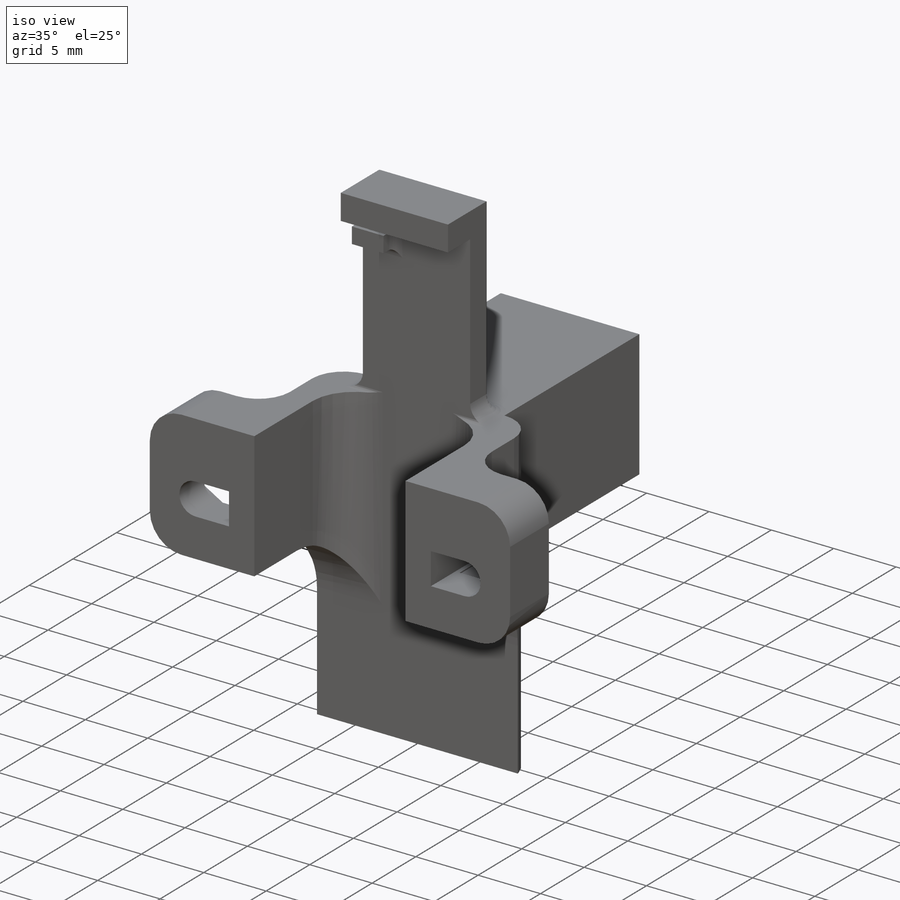
[diagram: iso view]
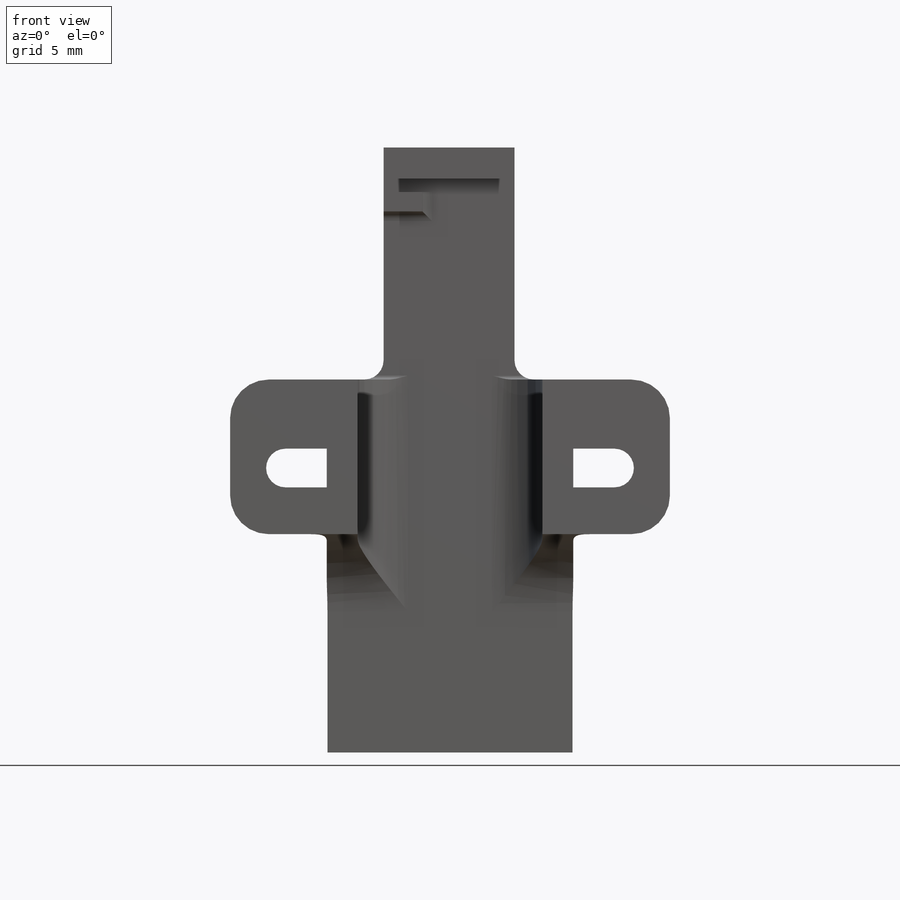
[diagram: front view]
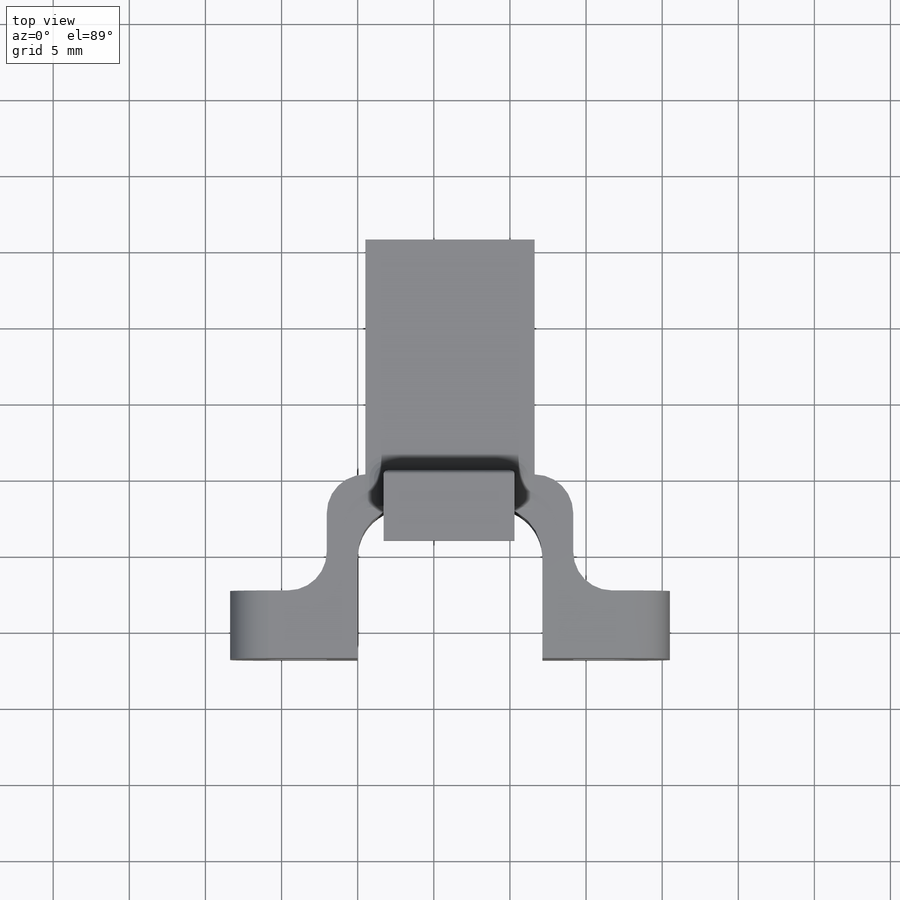
[diagram: top view]
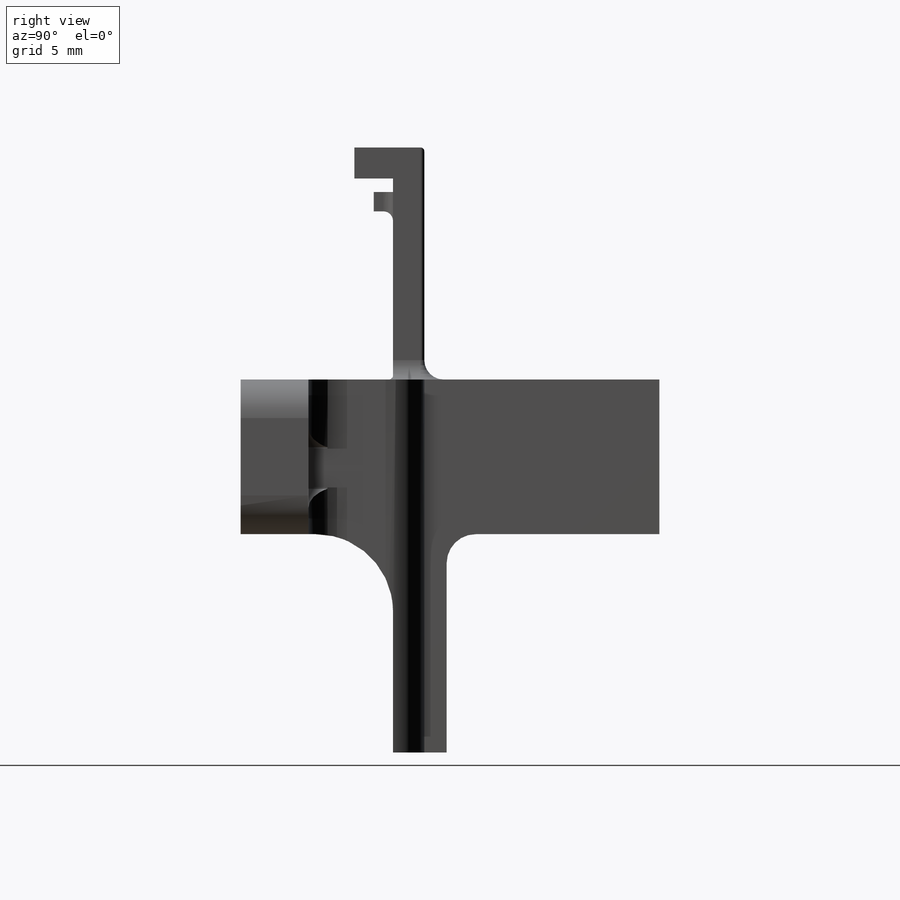
[diagram: right view]
SOLIDWORKS PART (.sldprt)
format: sldprt  version: not decoded by parser v0  size: 519,168 bytes
history: native  units: mm
features: sketch x11, extrude x8, fillet x8, cut_extrude x3, plane x2, material x1, mirror x1 (+13 scaffold rows collapsed)
feature tree (47):
  scaffold x13  (default folders/planes/origin — collapsed)
  material  "Material <not specified>"
  sketch  "Sketch1"  dims[c1.D3=~3.172423mm c1.D5=~4.589441mm c1.D6=~4.589441mm c1.D1=12.1285mm c1.D2=10.16mm c2.D3=8.9916mm c2.D4=5.5118mm c3.D3=5.5372mm c3.D7=1.7018mm c3.D8=1.8288mm c3.D9=15.24mm c3.D10=15.24mm c4.D3=8.6614mm]
  extrude  "Boss-Extrude1"  Depth=2.0574mm
  sketch  "Sketch4"  dims[D1=24.6634mm D2=12.065mm]
  extrude  "Boss-Extrude2"  Depth=2.032mm
  sketch  "Sketch5"  dims[D1=12.065mm]
  extrude  "Boss-Extrude3"  Depth=2.032mm
  sketch  "Sketch8"  dims[D1=2.032mm]
  extrude  "Boss-Extrude4"  Depth=2.54mm
  fillet  "Fillet22"  Radius=3.302mm
  sketch  "Sketch26"
  cut_extrude  "Cut-Extrude12"  [1 undecoded]
  sketch  "Sketch28"  dims[D1=0.889mm D2=2.54mm D3=1.27mm]
  extrude  "Boss-Extrude6"  Depth=1.27mm
  sketch  "Sketch30"  dims[D2=2.54mm D3=2.54mm D1=6.35mm]
  extrude  "Boss-Extrude7"  Depth=4.445mm
  fillet  "Fillet23"  Radius=0.635mm
  sketch  "Sketch34"  dims[D1=5.461mm]
  cut_extrude  "Cut-Extrude15"  Depth=1.651mm
  fillet  "Fillet25"  Radius=0.254mm
  plane  "Plane2"
  mirror  "Mirror7"
  fillet  "Fillet26"  Radius=2.54mm
  sketch  "Sketch35"
  plane  "Plane3"  Offset=27.499996mm
  extrude  "Boss-Extrude9"  [1 undecoded]
  sketch  "Sketch38"  dims[D1=13.97mm]
  extrude  "Boss-Extrude10"  Depth=14.34mm
  fillet  "Fillet27"  Radius=1.905mm
  fillet  "Fillet29"  Radius=5.08mm
  fillet  "Fillet32"  Radius=0.254mm
  fillet  "Fillet33"  Radius=1.27mm
  sketch  "Sketch39"  dims[D1=2.4mm]
  cut_extrude  "Cut-Extrude16"  Depth=8mm
decode coverage: 26 of 31 modeling features carry decoded parameters
note: ~ marks probable driven/reference dimensions
note: 2 parameter values undecoded
note: suppression state not decoded; provenance and decode notes live in map.json
